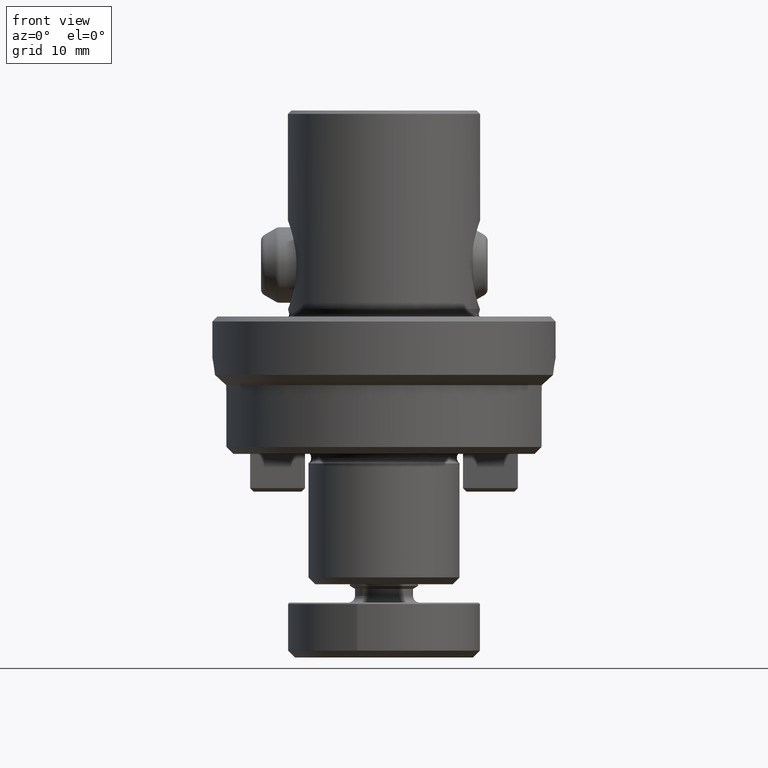
[diagram: clean part render]
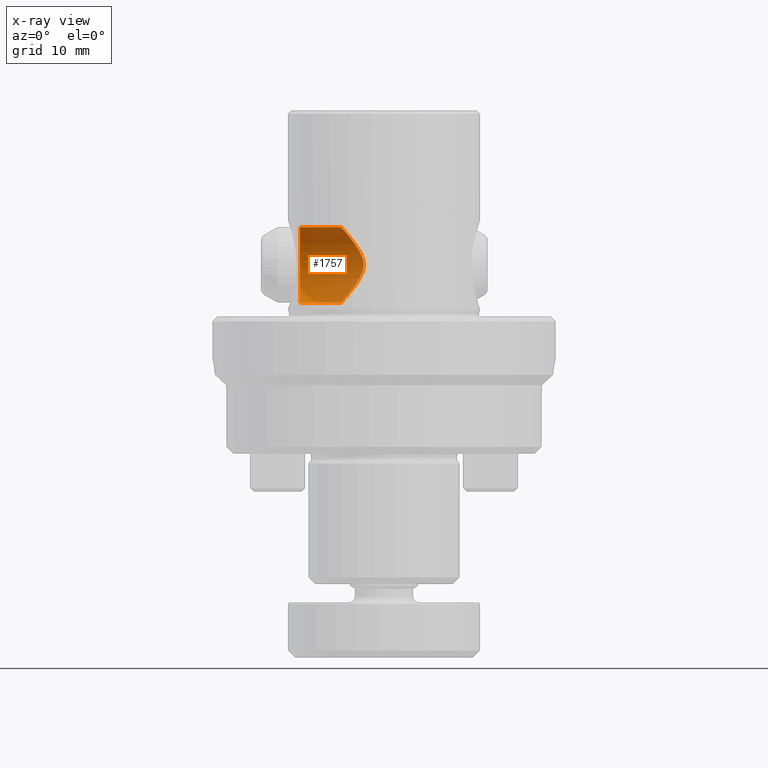
[diagram: x-ray — body ghosted, one internal face saturated and labeled with its STEP entity id]
A machine part, front view, then the same camera in x-ray: the body is ghosted and one INTERNAL B-rep face — a face not visible from any outside direction — is saturated and labeled: STEP entity #1757.
In plain terms, the highlighted cylindrical surface (partial cylindrical patch) has radius 5.5 mm, axis along (-1, -0, 0).
Its self-contained STEP definition (entity closure, byte-faithful):
#1267=EDGE_CURVE('NONE',#2977,#1941,#3423,.T.);
#1383=EDGE_CURVE('NONE',#3127,#1941,#3555,.T.);
#1607=EDGE_CURVE('NONE',#3127,#1995,#3810,.T.);
#1757=ADVANCED_FACE('NONE',(#3973),#3974,.F.);
#1941=VERTEX_POINT('NONE',#4171);
#1995=VERTEX_POINT('NONE',#4235);
#2691=EDGE_CURVE('NONE',#1995,#2977,#5020,.T.);
#2977=VERTEX_POINT('NONE',#5337);
#3127=VERTEX_POINT('NONE',#5497);
#3423=CIRCLE('',#5947,5.5);
#3555=LINE('',#6130,#6131);
#3810=B_SPLINE_CURVE_WITH_KNOTS('',3,(#6546,#6547,#6548,#6549,#6550,#6551,#6552,#6553,#6554,#6555,#6556,#6557,#6558,#6559,#6560,#6561,#6562,#6563,#6564,#6565,#6566,#6567,#6568,#6569,#6570,#6571,#6572,#6573,#6574,#6575,#6576,#6577,#6578,#6579,#6580,#6581,#6582,#6583,#6584,#6585,#6586,#6587,#6588,#6589),.UNSPECIFIED.,.F.,.F.,(4,2,2,2,2,2,2,2,2,2,2,2,2,2,2,2,2,2,2,2,2,4),(0.0186285262364382,0.0197911512363146,0.0203724637362528,0.020953776236191,0.0221164012360673,0.0232790262359437,0.0244416512358201,0.0256042762356965,0.0261855887356347,0.0267669012355729,0.0273482137355111,0.0279295262354493,0.0285108387353874,0.0290921512353256,0.030254776235202,0.0314174012350784,0.0325800262349548,0.0337426512348312,0.0349052762347076,0.0354865887346458,0.036067901234584,0.0372305262344604),.UNSPECIFIED.);
#3973=FACE_OUTER_BOUND('',#6931,.T.);
#3974=CYLINDRICAL_SURFACE('',#6932,5.5);
#4171=CARTESIAN_POINT('',(-12.25,7.36194172708324E-016,2.0));
#4235=CARTESIAN_POINT('',(-6.25,-2.30223410226332E-016,13.0));
#5020=LINE('',#8718,#8719);
#5337=CARTESIAN_POINT('',(-12.25,0.0,13.0));
#5497=CARTESIAN_POINT('',(-6.25,7.65374314399661E-016,2.0));
#5947=AXIS2_PLACEMENT_3D('',#9975,#9976,#9977);
#6130=CARTESIAN_POINT('',(-23.0644383032855,6.73533494602307E-016,2.0));
#6131=VECTOR('',#10131,1000.0);
#6546=CARTESIAN_POINT('',(-6.25,7.65374314399661E-016,2.0));
#6547=CARTESIAN_POINT('',(-6.25,0.387379935303768,2.0));
#6548=CARTESIAN_POINT('',(-6.21257155503488,0.781746145085415,2.04243162559872));
#6549=CARTESIAN_POINT('',(-6.10708634129286,1.34244720955437,2.16292398510994));
#6550=CARTESIAN_POINT('',(-6.06383701792814,1.52549841890933,2.21242464930647));
#6551=CARTESIAN_POINT('',(-5.96211525925465,1.88426283767774,2.32939538604011));
#6552=CARTESIAN_POINT('',(-5.903429566451,2.06022317588315,2.3971164005556));
#6553=CARTESIAN_POINT('',(-5.7105767166469,2.56550468431964,2.6210710221983));
#6554=CARTESIAN_POINT('',(-5.55831390489825,2.87751967576632,2.79947495166448));
#6555=CARTESIAN_POINT('',(-5.21847353183397,3.45579324430092,3.20668563146186));
#6556=CARTESIAN_POINT('',(-5.0353636440197,3.71470043033116,3.4300705987164));
#6557=CARTESIAN_POINT('',(-4.65334972400826,4.18332674562843,3.91348331136672));
#6558=CARTESIAN_POINT('',(-4.45336911958059,4.3937088769413,4.17463019510776));
#6559=CARTESIAN_POINT('',(-4.05289987469609,4.76562449383449,4.73385010920111));
#6560=CARTESIAN_POINT('',(-3.85535720883681,4.92446538371218,5.02711963869557));
#6561=CARTESIAN_POINT('',(-3.57950716769782,5.12469882697289,5.49592014081304));
#6562=CARTESIAN_POINT('',(-3.49106099627452,5.18504194896625,5.65708564849087));
#6563=CARTESIAN_POINT('',(-3.32623944910114,5.29228665318615,5.9924538812873));
#6564=CARTESIAN_POINT('',(-3.24929466624851,5.33951113257618,6.16809239048168));
#6565=CARTESIAN_POINT('',(-3.11828012904477,5.41706784153756,6.53060172510092));
#6566=CARTESIAN_POINT('',(-3.06460018141467,5.44725209566757,6.71616053634917));
#6567=CARTESIAN_POINT('',(-2.98975532409162,5.48868770907467,7.09841945915697));
#6568=CARTESIAN_POINT('',(-2.96911837970478,5.49971239243123,7.29698290110564));
#6569=CARTESIAN_POINT('',(-2.96807393926553,5.50027612427005,7.68712268352591));
#6570=CARTESIAN_POINT('',(-2.98694112524046,5.49021080404764,7.88070482656577));
#6571=CARTESIAN_POINT('',(-3.05978823649815,5.44994751408872,8.26512935607657));
#6572=CARTESIAN_POINT('',(-3.11334450207398,5.41988538016549,8.45328469772485));
#6573=CARTESIAN_POINT('',(-3.30617098938173,5.30603613631439,8.99385993865483));
#6574=CARTESIAN_POINT('',(-3.47971563152957,5.19677328718532,9.33342909169));
#6575=CARTESIAN_POINT('',(-3.85046190341367,4.92836855410329,9.96558273590324));
#6576=CARTESIAN_POINT('',(-4.04838324077014,4.76937110988554,10.2594973834848));
#6577=CARTESIAN_POINT('',(-4.44696249906645,4.40009456487655,10.8167596255101));
#6578=CARTESIAN_POINT('',(-4.64953943716155,4.18765386260374,11.0816088506525));
#6579=CARTESIAN_POINT('',(-5.03350823261377,3.71731848553631,11.5676664205834));
#6580=CARTESIAN_POINT('',(-5.21613308005757,3.45895033975484,11.7904446100031));
#6581=CARTESIAN_POINT('',(-5.55274844772724,2.8877961212703,12.1939201065177));
#6582=CARTESIAN_POINT('',(-5.70827490805807,2.57057792808662,12.3762370585924));
#6583=CARTESIAN_POINT('',(-5.90143356446799,2.06591994321018,12.6005749158536));
#6584=CARTESIAN_POINT('',(-5.95946704722208,1.89257879442537,12.6675513364919));
#6585=CARTESIAN_POINT('',(-6.06147479351678,1.53480464802368,12.7848666965963));
#6586=CARTESIAN_POINT('',(-6.10564602367554,1.34932087513432,12.8354290243152));
#6587=CARTESIAN_POINT('',(-6.21287434746922,0.781673272250872,12.957917706027));
#6588=CARTESIAN_POINT('',(-6.25,0.394173644559005,13.0));
#6589=CARTESIAN_POINT('',(-6.25,-2.30223410226332E-016,13.0));
#6931=EDGE_LOOP('',(#10655,#10656,#10657,#10658));
#6932=AXIS2_PLACEMENT_3D('',#10659,#10660,#10661);
#8718=CARTESIAN_POINT('',(-23.0644383032855,0.0,13.0));
#8719=VECTOR('',#11901,1000.0);
#9975=CARTESIAN_POINT('',(-12.25,0.0,7.5));
#9976=DIRECTION('',(-1.0,0.0,0.0));
#9977=DIRECTION('',(0.0,0.0,1.0));
#10131=DIRECTION('',(-1.0,0.0,1.45552046675905E-016));
#10655=ORIENTED_EDGE('',*,*,#1383,.F.);
#10656=ORIENTED_EDGE('',*,*,#1607,.T.);
#10657=ORIENTED_EDGE('',*,*,#2691,.T.);
#10658=ORIENTED_EDGE('',*,*,#1267,.T.);
#10659=CARTESIAN_POINT('',(-23.0644383032855,0.0,7.5));
#10660=DIRECTION('',(-1.0,-0.0,0.0));
#10661=DIRECTION('',(0.0,0.0,1.0));
#11901=DIRECTION('',(-1.0,0.0,1.45552046675905E-016));